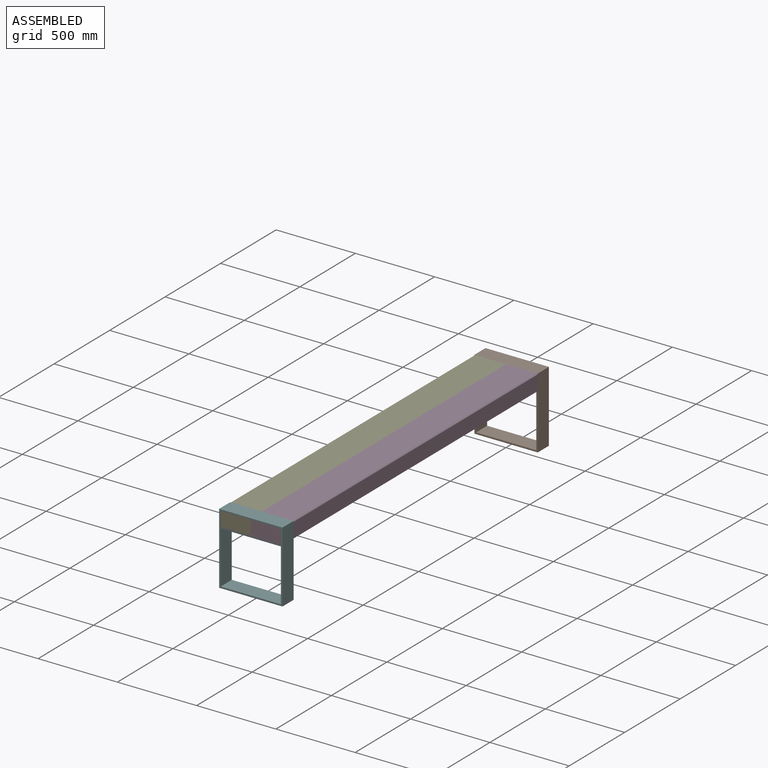
[diagram: assembled view]
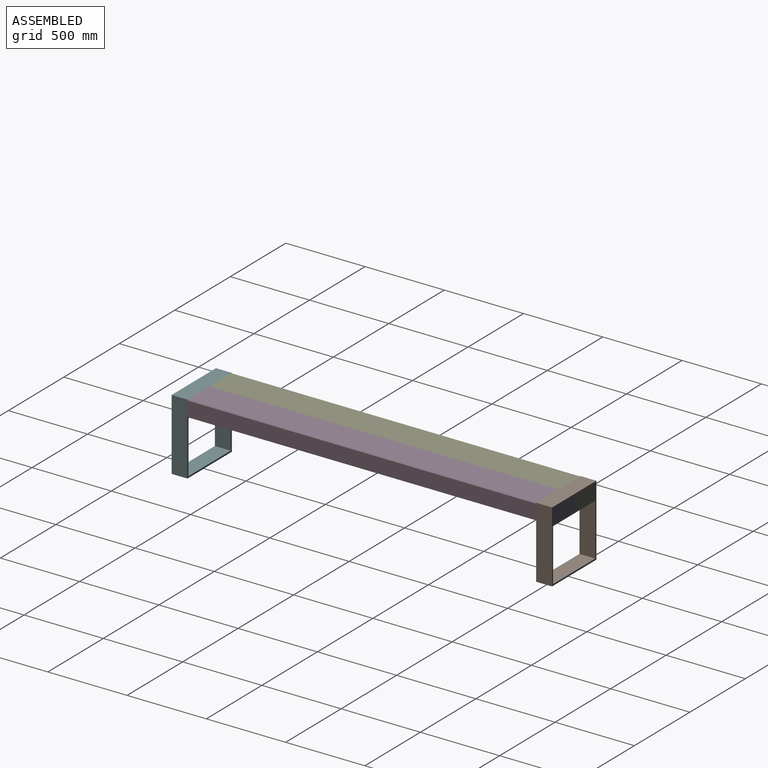
[diagram: assembled view, second angle]
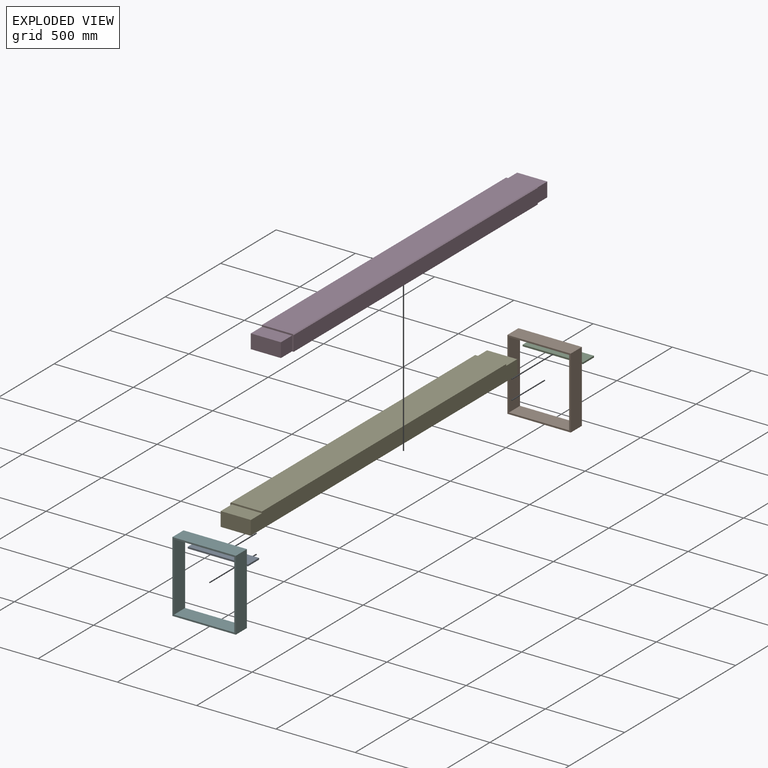
[diagram: exploded view]
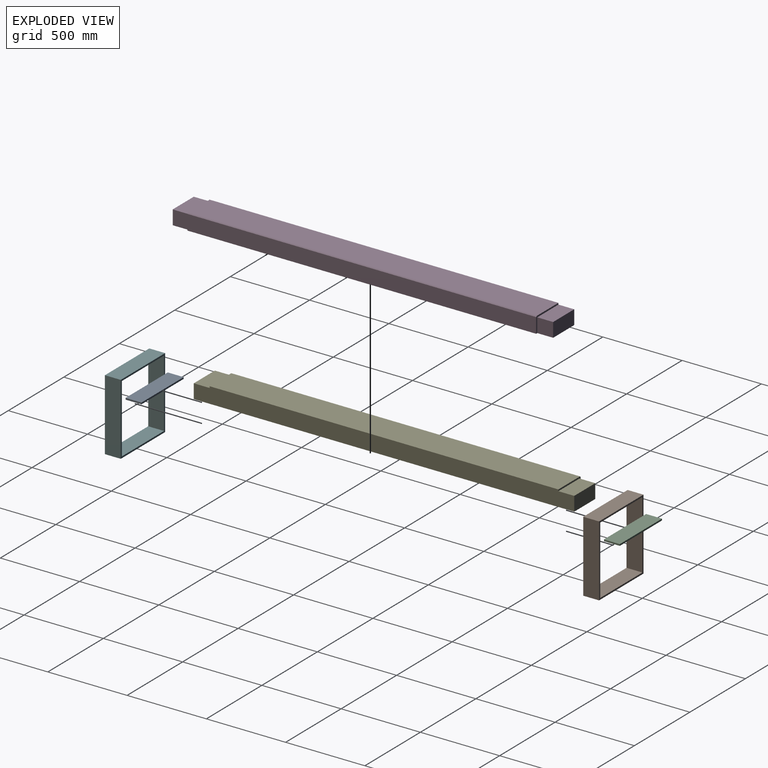
[diagram: exploded view, second angle]
ASSEMBLY  parts=6 mates=6
PART A: 6 faces, bbox 380x100x10 mm
  f0: plane 380x100mm, normal (0,0,-1), area 38000mm2, adj f1,f3,f4,f5
  f1: plane 100x10mm, normal (1,0,0), area 1000mm2, adj f0,f2,f4,f5
  f2: plane 380x100mm, normal (0,0,1), area 38000mm2, adj f1,f3,f4,f5
  f3: plane 100x10mm, normal (-1,0,0), area 1000mm2, adj f0,f2,f4,f5
  f4: plane 380x10mm, normal (0,1,0), area 3800mm2, adj f0,f1,f2,f3
  f5: plane 380x10mm, normal (0,-1,0), area 3800mm2, adj f0,f1,f2,f3
PART B: 10 faces, bbox 400x100x450 mm
  f0: plane 400x100mm, normal (0,0,-1), area 40000mm2, adj f1,f7,f8,f9
  f1: plane 450x100mm, normal (1,0,0), area 45000mm2, adj f0,f2,f8,f9
  f2: plane 400x100mm, normal (0,0,1), area 40000mm2, adj f1,f7,f8,f9
  f3: plane 430x100mm, normal (-1,0,0), area 43000mm2, adj f4,f6,f8,f9
  f4: plane 380x100mm, normal (0,0,1), area 38000mm2, adj f3,f5,f8,f9
  f5: plane 430x100mm, normal (1,0,0), area 43000mm2, adj f4,f6,f8,f9
  f6: plane 380x100mm, normal (0,0,-1), area 38000mm2, adj f3,f5,f8,f9
  f7: plane 450x100mm, normal (-1,0,0), area 45000mm2, adj f0,f2,f8,f9
  f8: plane 450x400mm, normal (0,1,0), area 16600mm2, adj f0,f1,f2,f3,f4,f5,f6,f7
  f9: plane 450x400mm, normal (0,-1,0), area 16600mm2, adj f0,f1,f2,f3,f4,f5,f6,f7
PART C: same geometry as A
PART D: 13 faces, bbox 200x2400x100 mm
  f0: plane 190x90mm, normal (0,1,0), area 17100mm2, adj f1,f2,f9,f10
  f1: plane 2400x100mm, normal (-1,0,0), area 238000mm2, adj f0,f2,f4,f5,f6,f8,f9,f11
  f2: plane 2400x200mm, normal (0,0,-1), area 478000mm2, adj f0,f1,f3,f5,f7,f8,f10,f11
  f3: plane 2200x95mm, normal (1,0,0), area 209000mm2, adj f2,f8,f11,f12
  f4: plane 2200x195mm, normal (0,0,1), area 429000mm2, adj f1,f8,f11,f12
  f5: plane 190x90mm, normal (0,-1,0), area 17100mm2, adj f1,f2,f6,f7
  f6: plane 190x100mm, normal (0,0,1), area 19000mm2, adj f1,f5,f7,f8
  f7: plane 100x90mm, normal (1,0,0), area 9000mm2, adj f2,f5,f6,f8
  f8: plane 200x100mm, normal (0,-1,0), area 2887.5mm2, adj f1,f2,f3,f4,f6,f7,f12
  f9: plane 190x100mm, normal (0,0,1), area 19000mm2, adj f0,f1,f10,f11
  f10: plane 100x90mm, normal (1,0,0), area 9000mm2, adj f0,f2,f9,f11
  f11: plane 200x100mm, normal (0,1,0), area 2887.5mm2, adj f1,f2,f3,f4,f9,f10,f12
  f12: plane 2200x5mm, normal (0.71,0,0.71), area 15556.3mm2, adj f3,f4,f8,f11
PART E: same geometry as D
PART F: same geometry as B
PLACE A t=(-285.03,-819.1,-273.04)mm
PLACE B t=(-285.03,1480.9,-273.04)mm
PLACE C t=(-285.03,1480.9,-273.04)mm
PLACE D t=(-385.03,-819.1,76.96)mm
PLACE E rot(axis=(0,0,-1),180deg) t=(-585.03,1580.9,76.96)mm
PLACE F t=(-285.03,-819.1,-273.04)mm
MATE parallel D.f2 <-> E.f2  axis (0,0,-1) through (-485.03,380.9,76.96)mm
MATE planar A.f5 <-> E.f0  axis (0,-1,0) through (-675.03,-819.1,76.96)mm
MATE planar C.f4 <-> E.f5  axis (0,1,0) through (-675.03,1580.9,76.96)mm
MATE planar E.f0 <-> D.f5  axis (0,-1,0) through (-485.03,-819.1,166.96)mm
MATE planar F.f9 <-> D.f5  axis (0,-1,0) through (-295.03,-819.1,166.96)mm
MATE planar B.f8 <-> E.f5  axis (0,1,0) through (-675.03,1580.9,166.96)mm
